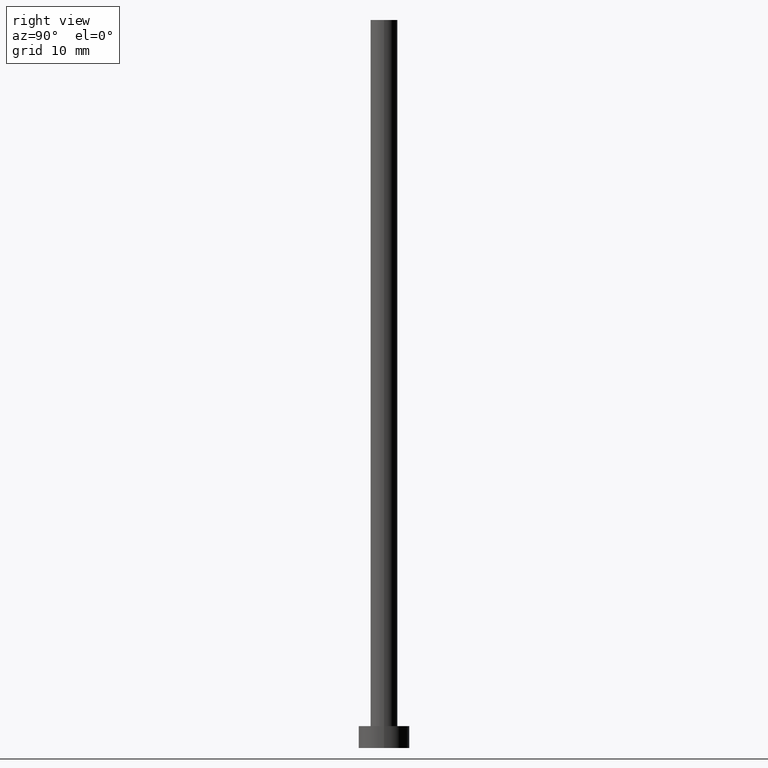
[diagram: clean part render]
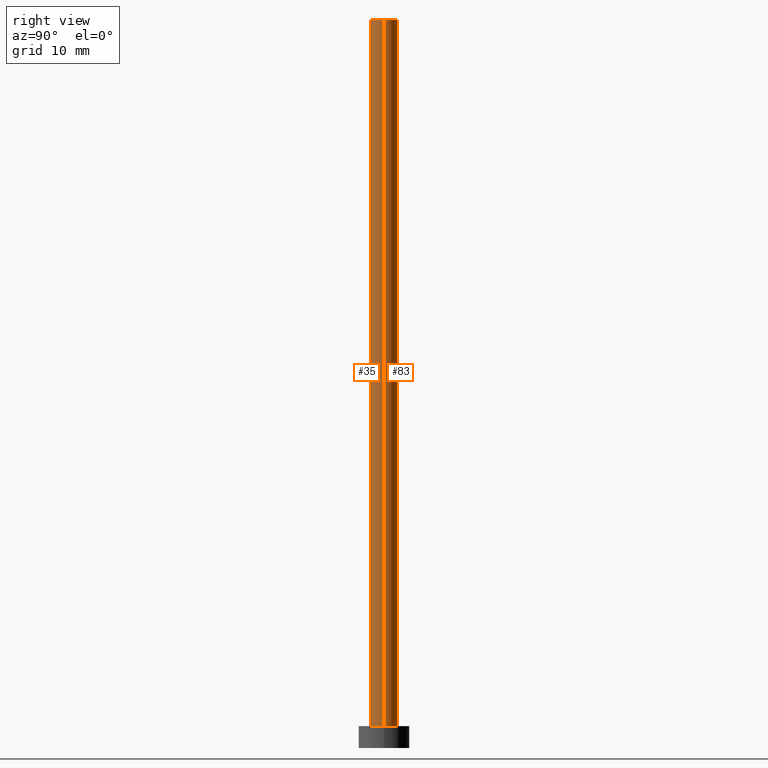
[diagram: same view with one multi-face feature highlighted, each face labeled with its STEP entity id]
A machine part, right view. The highlighted faces form ONE feature: a constant-radius fillet chain: 2 tangent blend faces with common blend radius 1.85 mm. The faces share edges in the B-rep.
Their STEP definitions:
[1] entity #83 (Cylinder):
#8 = DIRECTION ( 'NONE',  ( -0.000000000000000000, -0.000000000000000000, -1.000000000000000000 ) ) ;
#24 = DIRECTION ( 'NONE',  ( 1.000000000000000000, 0.000000000000000000, 0.000000000000000000 ) ) ;
#29 = CYLINDRICAL_SURFACE ( 'NONE', #204, 1.850000000000000089 ) ;
#39 = EDGE_CURVE ( 'NONE', #59, #102, #174, .T. ) ;
#41 = ORIENTED_EDGE ( 'NONE', *, *, #39, .F. ) ;
#44 = ORIENTED_EDGE ( 'NONE', *, *, #253, .F. ) ;
#54 = CARTESIAN_POINT ( 'NONE',  ( 1.850000000000000089, 2.265596578422602607E-16, 100.0000000000000000 ) ) ;
#57 = AXIS2_PLACEMENT_3D ( 'NONE', #188, #192, #150 ) ;
#59 = VERTEX_POINT ( 'NONE', #138 ) ;
#81 = EDGE_LOOP ( 'NONE', ( #44, #207, #184, #41 ) ) ;
#82 = CARTESIAN_POINT ( 'NONE',  ( 0.000000000000000000, 0.000000000000000000, 3.000000000000000000 ) ) ;
#83 = ADVANCED_FACE ( 'NONE', ( #249 ), #29, .T. ) ;
#84 = VERTEX_POINT ( 'NONE', #251 ) ;
#95 = LINE ( 'NONE', #54, #124 ) ;
#102 = VERTEX_POINT ( 'NONE', #193 ) ;
#104 = CIRCLE ( 'NONE', #254, 1.850000000000000089 ) ;
#113 = DIRECTION ( 'NONE',  ( -0.000000000000000000, -0.000000000000000000, -1.000000000000000000 ) ) ;
#116 = CARTESIAN_POINT ( 'NONE',  ( -1.850000000000000089, 0.000000000000000000, 100.0000000000000000 ) ) ;
#119 = CARTESIAN_POINT ( 'NONE',  ( 0.000000000000000000, 0.000000000000000000, 100.0000000000000000 ) ) ;
#124 = VECTOR ( 'NONE', #217, 1000.000000000000000 ) ;
#132 = CARTESIAN_POINT ( 'NONE',  ( 1.850000000000000089, 2.265596578422602607E-16, 3.000000000000000000 ) ) ;
#138 = CARTESIAN_POINT ( 'NONE',  ( -1.850000000000000089, 0.000000000000000000, 100.0000000000000000 ) ) ;
#143 = CIRCLE ( 'NONE', #57, 1.850000000000000089 ) ;
#145 = EDGE_CURVE ( 'NONE', #84, #167, #95, .T. ) ;
#150 = DIRECTION ( 'NONE',  ( 1.000000000000000000, 0.000000000000000000, 0.000000000000000000 ) ) ;
#167 = VERTEX_POINT ( 'NONE', #132 ) ;
#172 = DIRECTION ( 'NONE',  ( 0.000000000000000000, 0.000000000000000000, 1.000000000000000000 ) ) ;
#174 = LINE ( 'NONE', #116, #181 ) ;
#177 = DIRECTION ( 'NONE',  ( -1.000000000000000000, 0.000000000000000000, 0.000000000000000000 ) ) ;
#181 = VECTOR ( 'NONE', #8, 1000.000000000000000 ) ;
#184 = ORIENTED_EDGE ( 'NONE', *, *, #227, .T. ) ;
#188 = CARTESIAN_POINT ( 'NONE',  ( 0.000000000000000000, 0.000000000000000000, 100.0000000000000000 ) ) ;
#192 = DIRECTION ( 'NONE',  ( 0.000000000000000000, 0.000000000000000000, 1.000000000000000000 ) ) ;
#193 = CARTESIAN_POINT ( 'NONE',  ( -1.850000000000000089, 0.000000000000000000, 3.000000000000000000 ) ) ;
#204 = AXIS2_PLACEMENT_3D ( 'NONE', #119, #113, #177 ) ;
#207 = ORIENTED_EDGE ( 'NONE', *, *, #145, .T. ) ;
#217 = DIRECTION ( 'NONE',  ( -0.000000000000000000, -0.000000000000000000, -1.000000000000000000 ) ) ;
#227 = EDGE_CURVE ( 'NONE', #167, #102, #104, .T. ) ;
#249 = FACE_OUTER_BOUND ( 'NONE', #81, .T. ) ;
#251 = CARTESIAN_POINT ( 'NONE',  ( 1.850000000000000089, 2.265596578422602607E-16, 100.0000000000000000 ) ) ;
#253 = EDGE_CURVE ( 'NONE', #84, #59, #143, .T. ) ;
#254 = AXIS2_PLACEMENT_3D ( 'NONE', #82, #172, #24 ) ;
[2] entity #35 (Cylinder):
#4 = FACE_OUTER_BOUND ( 'NONE', #126, .T. ) ;
#7 = CIRCLE ( 'NONE', #154, 1.850000000000000089 ) ;
#8 = DIRECTION ( 'NONE',  ( -0.000000000000000000, -0.000000000000000000, -1.000000000000000000 ) ) ;
#23 = ORIENTED_EDGE ( 'NONE', *, *, #39, .T. ) ;
#35 = ADVANCED_FACE ( 'NONE', ( #4 ), #243, .T. ) ;
#39 = EDGE_CURVE ( 'NONE', #59, #102, #174, .T. ) ;
#54 = CARTESIAN_POINT ( 'NONE',  ( 1.850000000000000089, 2.265596578422602607E-16, 100.0000000000000000 ) ) ;
#59 = VERTEX_POINT ( 'NONE', #138 ) ;
#76 = DIRECTION ( 'NONE',  ( 0.000000000000000000, 0.000000000000000000, 1.000000000000000000 ) ) ;
#84 = VERTEX_POINT ( 'NONE', #251 ) ;
#88 = CARTESIAN_POINT ( 'NONE',  ( 0.000000000000000000, 0.000000000000000000, 3.000000000000000000 ) ) ;
#95 = LINE ( 'NONE', #54, #124 ) ;
#98 = DIRECTION ( 'NONE',  ( -1.000000000000000000, 0.000000000000000000, 0.000000000000000000 ) ) ;
#102 = VERTEX_POINT ( 'NONE', #193 ) ;
#109 = EDGE_CURVE ( 'NONE', #59, #84, #133, .T. ) ;
#111 = CARTESIAN_POINT ( 'NONE',  ( 0.000000000000000000, 0.000000000000000000, 100.0000000000000000 ) ) ;
#116 = CARTESIAN_POINT ( 'NONE',  ( -1.850000000000000089, 0.000000000000000000, 100.0000000000000000 ) ) ;
#120 = DIRECTION ( 'NONE',  ( 1.000000000000000000, 0.000000000000000000, 0.000000000000000000 ) ) ;
#121 = AXIS2_PLACEMENT_3D ( 'NONE', #135, #245, #98 ) ;
#124 = VECTOR ( 'NONE', #217, 1000.000000000000000 ) ;
#126 = EDGE_LOOP ( 'NONE', ( #203, #148, #23, #240 ) ) ;
#132 = CARTESIAN_POINT ( 'NONE',  ( 1.850000000000000089, 2.265596578422602607E-16, 3.000000000000000000 ) ) ;
#133 = CIRCLE ( 'NONE', #163, 1.850000000000000089 ) ;
#135 = CARTESIAN_POINT ( 'NONE',  ( 0.000000000000000000, 0.000000000000000000, 100.0000000000000000 ) ) ;
#137 = DIRECTION ( 'NONE',  ( 1.000000000000000000, 0.000000000000000000, 0.000000000000000000 ) ) ;
#138 = CARTESIAN_POINT ( 'NONE',  ( -1.850000000000000089, 0.000000000000000000, 100.0000000000000000 ) ) ;
#145 = EDGE_CURVE ( 'NONE', #84, #167, #95, .T. ) ;
#148 = ORIENTED_EDGE ( 'NONE', *, *, #109, .F. ) ;
#154 = AXIS2_PLACEMENT_3D ( 'NONE', #88, #171, #137 ) ;
#159 = EDGE_CURVE ( 'NONE', #102, #167, #7, .T. ) ;
#163 = AXIS2_PLACEMENT_3D ( 'NONE', #111, #76, #120 ) ;
#167 = VERTEX_POINT ( 'NONE', #132 ) ;
#171 = DIRECTION ( 'NONE',  ( 0.000000000000000000, 0.000000000000000000, 1.000000000000000000 ) ) ;
#174 = LINE ( 'NONE', #116, #181 ) ;
#181 = VECTOR ( 'NONE', #8, 1000.000000000000000 ) ;
#193 = CARTESIAN_POINT ( 'NONE',  ( -1.850000000000000089, 0.000000000000000000, 3.000000000000000000 ) ) ;
#203 = ORIENTED_EDGE ( 'NONE', *, *, #145, .F. ) ;
#217 = DIRECTION ( 'NONE',  ( -0.000000000000000000, -0.000000000000000000, -1.000000000000000000 ) ) ;
#240 = ORIENTED_EDGE ( 'NONE', *, *, #159, .T. ) ;
#243 = CYLINDRICAL_SURFACE ( 'NONE', #121, 1.850000000000000089 ) ;
#245 = DIRECTION ( 'NONE',  ( -0.000000000000000000, -0.000000000000000000, -1.000000000000000000 ) ) ;
#251 = CARTESIAN_POINT ( 'NONE',  ( 1.850000000000000089, 2.265596578422602607E-16, 100.0000000000000000 ) ) ;